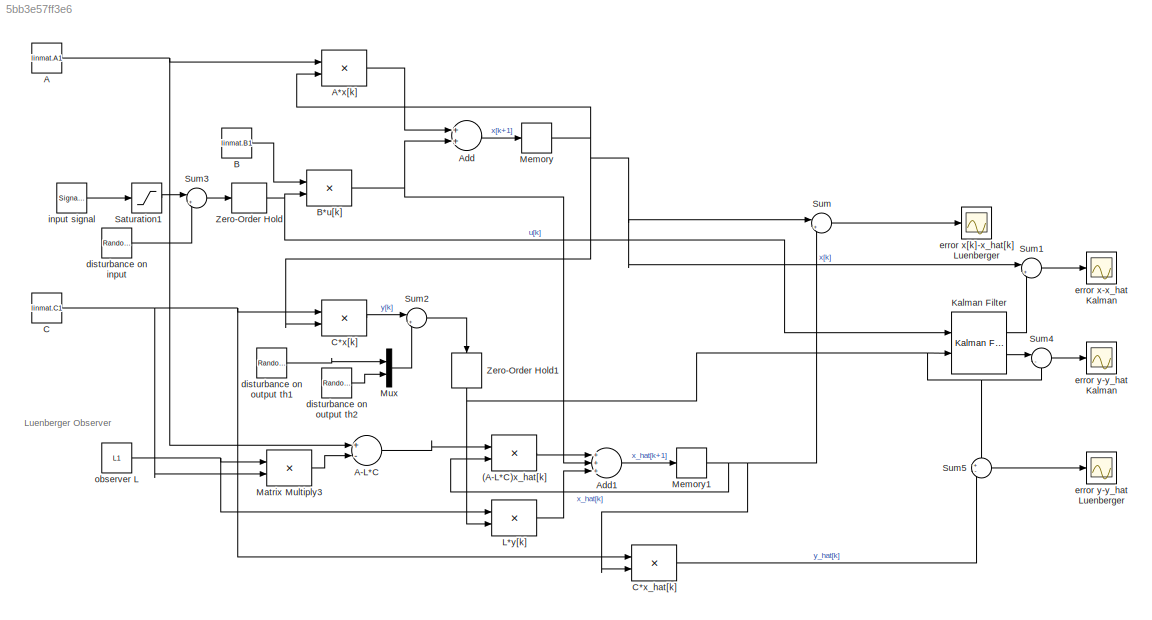
MODEL slx_5bb3e57ff3e6
KIND model
CONFIG AbsTol = auto
CONFIG EnableMultiTasking = off
CONFIG FixedStep = auto
CONFIG InitFcn = lindiscrmodel
CONFIG MaxStep = auto
CONFIG MinStep = auto
CONFIG RelTol = 1e-3
CONFIG SampleTimeConstraint = Unconstrained
CONFIG Solver = VariableStepAuto
CONFIG SolverName = VariableStepAuto
CONFIG StartTime = 0.0
CONFIG StopTime = 30
BLOCK [Product] (A-L*C)x_hat[k]
  InputSameDT = off
  Multiplication = Matrix(*)
  OutDataTypeStr = Inherit: Inherit via internal rule
  Ports = [2, 1]
  RndMeth = Floor
  SaturateOnIntegerOverflow = off
BLOCK [Constant] A
  SampleTime = Ts
  Value = linmat.A1
BLOCK [Product] A*x[k]
  InputSameDT = off
  Multiplication = Matrix(*)
  OutDataTypeStr = Inherit: Inherit via internal rule
  Ports = [2, 1]
  RndMeth = Floor
  SaturateOnIntegerOverflow = off
BLOCK [Sum] A-L*C
  InputSameDT = off
  Inputs = +-
  OutDataTypeStr = Inherit: Inherit via internal rule
  Ports = [2, 1]
  SaturateOnIntegerOverflow = off
BLOCK [Sum] Add
  InputSameDT = off
  OutDataTypeStr = Inherit: Inherit via internal rule
  Ports = [2, 1]
  SaturateOnIntegerOverflow = off
BLOCK [Sum] Add1
  InputSameDT = off
  Inputs = +++
  OutDataTypeStr = Inherit: Inherit via internal rule
  Ports = [3, 1]
  SaturateOnIntegerOverflow = off
BLOCK [Constant] B
  SampleTime = Ts
  Value = linmat.B1
BLOCK [Product] B*u[k]
  InputSameDT = off
  Multiplication = Matrix(*)
  OutDataTypeStr = Inherit: Inherit via internal rule
  Ports = [2, 1]
  RndMeth = Floor
  SaturateOnIntegerOverflow = off
BLOCK [Constant] C
  SampleTime = Ts
  Value = linmat.C1
BLOCK [Product] C*x[k]
  InputSameDT = off
  Multiplication = Matrix(*)
  OutDataTypeStr = Inherit: Inherit via internal rule
  Ports = [2, 1]
  RndMeth = Floor
  SaturateOnIntegerOverflow = off
BLOCK [Product] C*x_hat[k]
  InputSameDT = off
  Multiplication = Matrix(*)
  OutDataTypeStr = Inherit: Inherit via internal rule
  Ports = [2, 1]
  RndMeth = Floor
  SaturateOnIntegerOverflow = off
BLOCK [Reference] Kalman Filter  REF=ctrlSharedLib/Kalman Filter
  Ports = [2, 2]
  SourceBlock = ctrlSharedLib/Kalman Filter
  SourceProductBaseCode = CT
  SourceProductName = Control System Toolbox
  SourceType = ctrlKalmanFilter
BLOCK [Product] L*y[k]
  InputSameDT = off
  Multiplication = Matrix(*)
  OutDataTypeStr = Inherit: Inherit via internal rule
  Ports = [2, 1]
  RndMeth = Floor
  SaturateOnIntegerOverflow = off
BLOCK [Product] Matrix Multiply3
  InputSameDT = off
  Multiplication = Matrix(*)
  OutDataTypeStr = Inherit: Inherit via internal rule
  Ports = [2, 1]
  RndMeth = Floor
  SaturateOnIntegerOverflow = off
BLOCK [Memory] Memory
  InitialCondition = [0;0;0;0]
BLOCK [Memory] Memory1
  InitialCondition = [0;0;0;0]
BLOCK [Mux] Mux
  DisplayOption = bar
  Inputs = 2
  Ports = [2, 1]
BLOCK [Saturate] Saturation1
  InputPortMap = u0
  LowerLimit = -1
  Ports = [1, 1]
  UpperLimit = 1
BLOCK [Sum] Sum
  IconShape = round
  InputSameDT = off
  Inputs = |+-
  OutDataTypeStr = Inherit: Inherit via internal rule
  Ports = [2, 1]
  SaturateOnIntegerOverflow = off
BLOCK [Sum] Sum1
  IconShape = round
  InputSameDT = off
  Inputs = |+-
  OutDataTypeStr = Inherit: Inherit via internal rule
  Ports = [2, 1]
  SaturateOnIntegerOverflow = off
BLOCK [Sum] Sum2
  IconShape = round
  InputSameDT = off
  Inputs = |++
  OutDataTypeStr = Inherit: Inherit via internal rule
  Ports = [2, 1]
  SaturateOnIntegerOverflow = off
BLOCK [Sum] Sum3
  IconShape = round
  InputSameDT = off
  Inputs = |++
  OutDataTypeStr = Inherit: Inherit via internal rule
  Ports = [2, 1]
  SaturateOnIntegerOverflow = off
BLOCK [Sum] Sum4
  IconShape = round
  InputSameDT = off
  Inputs = |-+
  OutDataTypeStr = Inherit: Inherit via internal rule
  Ports = [2, 1]
  SaturateOnIntegerOverflow = off
BLOCK [Sum] Sum5
  IconShape = round
  InputSameDT = off
  Inputs = +-
  OutDataTypeStr = Inherit: Inherit via internal rule
  Ports = [2, 1]
  SaturateOnIntegerOverflow = off
BLOCK [ZeroOrderHold] Zero-Order Hold
  SampleTime = Ts
BLOCK [ZeroOrderHold] Zero-Order Hold1
  SampleTime = Ts
BLOCK [RandomNumber] disturbance on input
  SampleTime = 0.1
  Variance = 0
BLOCK [RandomNumber] disturbance on output th1
  SampleTime = 0.1
  Variance = 0.1
BLOCK [RandomNumber] disturbance on output th2
  SampleTime = 0.1
  Variance = 0.1
BLOCK [Scope] error x-x_hat Kalman
  Floating = off
  NumInputPorts = 1
  Ports = [1]
  ScopeSpecificationString = Simulink.scopes.TimeScopeBlockCfg('CurrentConfiguration', extmgr.ConfigurationSet(extmgr.Configuration('Core','General UI',true),extmgr.Configuration('Core','Source UI',true),extmgr.Configuration('Sources','WiredSimulink',true,'DataLoggingVariableName','ScopeData1'),extmgr.Configuration('Visuals','Time Domain',true,'SerializedDisplays',{struct('MinYLimReal','-0.0000000001','MaxYLimReal','0.0000000...<+1604ch>
BLOCK [Scope] error x[k]-x_hat[k] Luenberger
  Floating = off
  NumInputPorts = 1
  Ports = [1]
  ScopeSpecificationString = Simulink.scopes.TimeScopeBlockCfg('CurrentConfiguration', extmgr.ConfigurationSet(extmgr.Configuration('Core','General UI',true),extmgr.Configuration('Core','Source UI',true),extmgr.Configuration('Sources','WiredSimulink',true,'DataLoggingVariableName','ScopeData1'),extmgr.Configuration('Visuals','Time Domain',true,'SerializedDisplays',{struct('MinYLimReal','-0.00000000000038','MaxYLimReal','0.000...<+1628ch>
BLOCK [Scope] error y-y_hat Kalman
  Floating = off
  NumInputPorts = 1
  Ports = [1]
  ScopeSpecificationString = Simulink.scopes.TimeScopeBlockCfg('CurrentConfiguration', extmgr.ConfigurationSet(extmgr.Configuration('Core','General UI',true),extmgr.Configuration('Core','Source UI',true),extmgr.Configuration('Sources','WiredSimulink',true,'DataLoggingVariableName','ScopeData2'),extmgr.Configuration('Visuals','Time Domain',true,'SerializedDisplays',{struct('MinYLimReal','-0.0000016','MaxYLimReal','0.0000018','...<+1423ch>
BLOCK [Scope] error y-y_hat Luenberger
  Floating = off
  NumInputPorts = 1
  Ports = [1]
  ScopeSpecificationString = Simulink.scopes.TimeScopeBlockCfg('CurrentConfiguration', extmgr.ConfigurationSet(extmgr.Configuration('Core','General UI',true),extmgr.Configuration('Core','Source UI',true),extmgr.Configuration('Sources','WiredSimulink',true,'DataLoggingVariableName','ScopeData1'),extmgr.Configuration('Visuals','Time Domain',true,'SerializedDisplays',{struct('MinYLimReal','-1.92052','MaxYLimReal','1.81716','YLab...<+1417ch>
BLOCK [SignalGenerator] input signal
  Amplitude = 0
  Ports = [0, 1]
  WaveForm = square
BLOCK [Constant] observer L
  SampleTime = Ts
  Value = L1
ANNOTATION (root): Luenberger Observer
LINE (A-L*C)x_hat[k]:1 -> Add1:1
LINE A*x[k]:1 -> Add:1
LINE A-L*C:1 -> (A-L*C)x_hat[k]:1
NET A:1 -> A*x[k]:1, A-L*C:1
LINE Add1:1 -> Memory1:1
LINE Add:1 -> Memory:1
NET B*u[k]:1 -> Add1:2, Add:2
LINE B:1 -> B*u[k]:1
LINE C*x[k]:1 -> Sum2:1
LINE C*x_hat[k]:1 -> Sum5:2
NET C:1 -> C*x[k]:1, C*x_hat[k]:1, Matrix Multiply3:2
LINE Kalman Filter:1 -> Sum1:2
LINE Kalman Filter:2 -> Sum4:1
LINE L*y[k]:1 -> Add1:3
LINE Matrix Multiply3:1 -> A-L*C:2
NET Memory1:1 -> (A-L*C)x_hat[k]:2, C*x_hat[k]:2, Sum:2
NET Memory:1 -> A*x[k]:2, C*x[k]:2, Sum1:1, Sum:1
LINE Mux:1 -> Sum2:2
LINE Saturation1:1 -> Sum3:1
LINE Sum1:1 -> error x-x_hat Kalman:1
LINE Sum2:1 -> Zero-Order Hold1:1
LINE Sum3:1 -> Zero-Order Hold:1
LINE Sum4:1 -> error y-y_hat Kalman:1
LINE Sum5:1 -> error y-y_hat Luenberger:1
LINE Sum:1 -> error x[k]-x_hat[k] Luenberger:1
NET Zero-Order Hold1:1 -> Kalman Filter:2, L*y[k]:2, Sum4:2, Sum5:1
NET Zero-Order Hold:1 -> B*u[k]:2, Kalman Filter:1
LINE disturbance on input:1 -> Sum3:2
LINE disturbance on output th1:1 -> Mux:1
LINE disturbance on output th2:1 -> Mux:2
LINE input signal:1 -> Saturation1:1
NET observer L:1 -> L*y[k]:1, Matrix Multiply3:1
note: NET lines group one-source signal fan-out (src -> all destinations, sorted); 1:1 wires keep LINE
